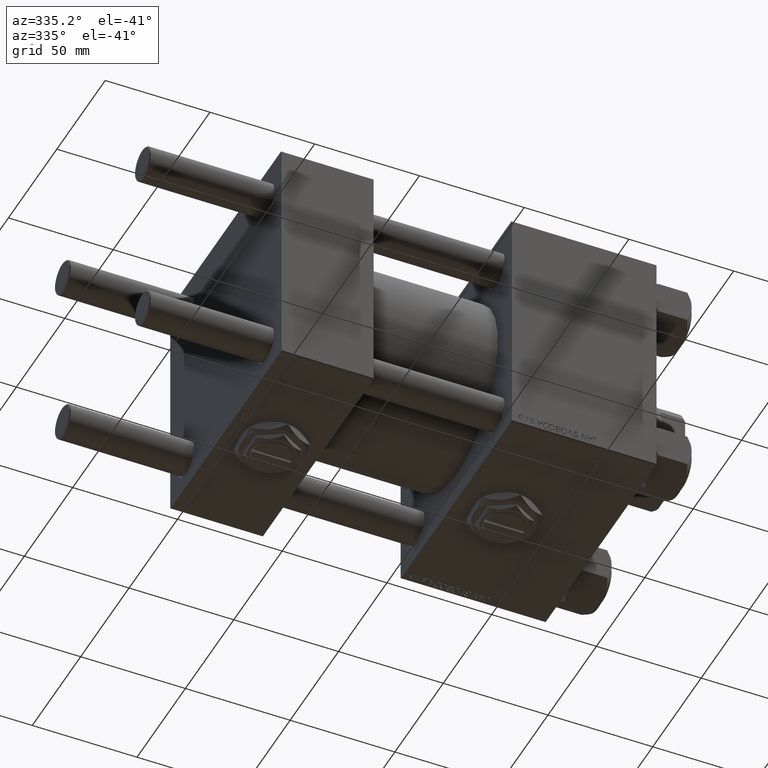
[diagram: clean part render]
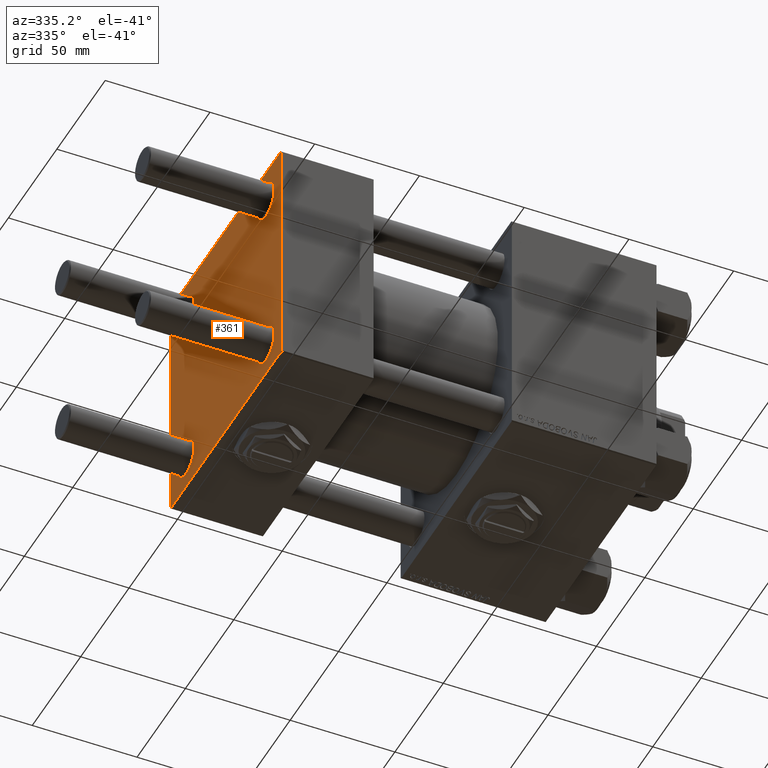
[diagram: same view with one face highlighted and labeled with its STEP entity id]
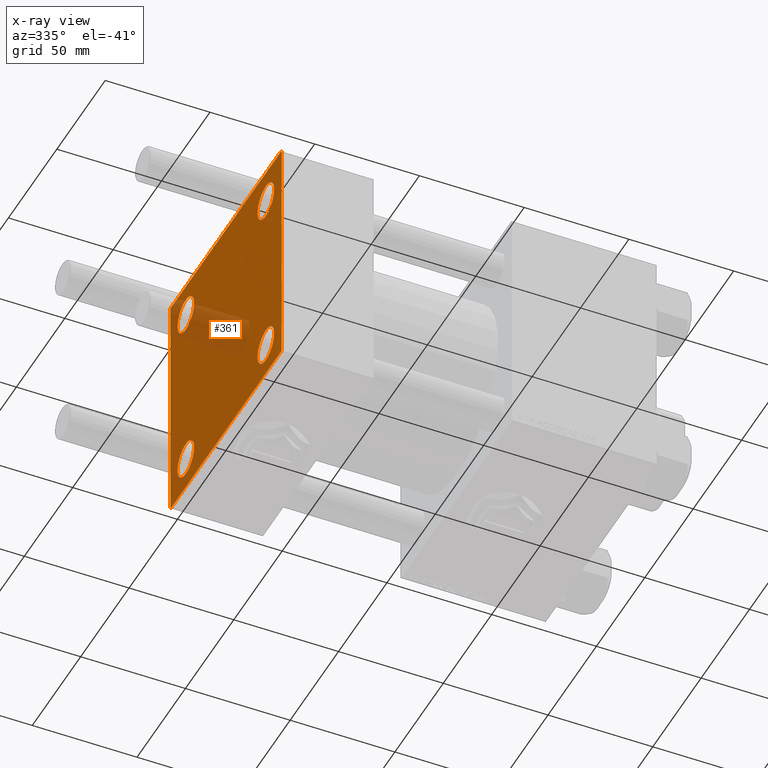
[diagram: x-ray of the same camera — body ghosted, the highlighted face saturated]
A machine part, auxiliary view. The second image highlights one B-rep face of the part: STEP entity #361.
The next image is the same camera in x-ray: the body ghosted, the highlighted face saturated — about 12% of this face is hidden behind the body in this view.
In plain terms, the highlighted planar face has unit normal (-1, 0, 0).
Its self-contained STEP definition (entity closure, byte-faithful):
#79 = DIRECTION ( 'NONE',  ( 0.000000000000000000, -1.000000000000000000, -1.206764157201257045E-16 ) ) ;
#252 = EDGE_LOOP ( 'NONE', ( #44641, #29699 ) ) ;
#361 = ADVANCED_FACE ( 'NONE', ( #3241, #11161, #2984, #34462, #50338 ), #19096, .T. ) ;
#513 = ORIENTED_EDGE ( 'NONE', *, *, #23494, .T. ) ;
#570 = DIRECTION ( 'NONE',  ( 0.000000000000000000, -0.7071067811865474617, 0.7071067811865474617 ) ) ;
#597 = ORIENTED_EDGE ( 'NONE', *, *, #21142, .T. ) ;
#1466 = CIRCLE ( 'NONE', #30998, 8.499999999999992895 ) ;
#2395 = DIRECTION ( 'NONE',  ( 0.000000000000000000, 0.000000000000000000, 1.000000000000000000 ) ) ;
#2607 = EDGE_CURVE ( 'NONE', #12701, #10030, #36299, .T. ) ;
#2654 = CARTESIAN_POINT ( 'NONE',  ( 0.000000000000000000, 41.34999999999999432, 41.35000000000000142 ) ) ;
#2984 = FACE_BOUND ( 'NONE', #252, .T. ) ;
#3071 = VERTEX_POINT ( 'NONE', #14245 ) ;
#3241 = FACE_BOUND ( 'NONE', #11183, .T. ) ;
#3258 = EDGE_CURVE ( 'NONE', #35482, #25384, #43866, .T. ) ;
#3775 = CARTESIAN_POINT ( 'NONE',  ( 0.000000000000000000, 41.34999999999999432, 32.85000000000000853 ) ) ;
#3923 = CARTESIAN_POINT ( 'NONE',  ( -0.000000000000000000, -57.25000000000081712, 57.24999999999922551 ) ) ;
#3937 = CARTESIAN_POINT ( 'NONE',  ( 0.000000000000000000, 57.24999999999922551, 57.25000000000081712 ) ) ;
#4875 = VERTEX_POINT ( 'NONE', #42690 ) ;
#5040 = ORIENTED_EDGE ( 'NONE', *, *, #3258, .T. ) ;
#5358 = VECTOR ( 'NONE', #12633, 1000.000000000000114 ) ;
#5807 = DIRECTION ( 'NONE',  ( 1.000000000000000000, -0.000000000000000000, 0.000000000000000000 ) ) ;
#6098 = DIRECTION ( 'NONE',  ( 0.000000000000000000, 0.000000000000000000, 1.000000000000000000 ) ) ;
#6408 = CARTESIAN_POINT ( 'NONE',  ( 0.000000000000000000, -57.50000000000000711, -57.00000000000000711 ) ) ;
#6707 = ORIENTED_EDGE ( 'NONE', *, *, #35612, .T. ) ;
#7218 = CARTESIAN_POINT ( 'NONE',  ( 0.000000000000000000, 57.49999999999999289, -57.49999999999999289 ) ) ;
#7549 = ORIENTED_EDGE ( 'NONE', *, *, #42366, .T. ) ;
#7615 = DIRECTION ( 'NONE',  ( 0.000000000000000000, 0.000000000000000000, 1.000000000000000000 ) ) ;
#7788 = DIRECTION ( 'NONE',  ( 0.000000000000000000, 0.000000000000000000, 1.000000000000000000 ) ) ;
#8379 = EDGE_CURVE ( 'NONE', #51293, #30797, #9827, .T. ) ;
#8570 = DIRECTION ( 'NONE',  ( 1.000000000000000000, -0.000000000000000000, 0.000000000000000000 ) ) ;
#8907 = EDGE_CURVE ( 'NONE', #39832, #11356, #51658, .T. ) ;
#9827 = LINE ( 'NONE', #16727, #24611 ) ;
#10030 = VERTEX_POINT ( 'NONE', #26660 ) ;
#10170 = CARTESIAN_POINT ( 'NONE',  ( 0.000000000000000000, -41.34999999999998721, -49.85000000000000853 ) ) ;
#11161 = FACE_BOUND ( 'NONE', #22301, .T. ) ;
#11183 = EDGE_LOOP ( 'NONE', ( #5040, #7549 ) ) ;
#11229 = ORIENTED_EDGE ( 'NONE', *, *, #40539, .F. ) ;
#11356 = VERTEX_POINT ( 'NONE', #38131 ) ;
#11774 = EDGE_CURVE ( 'NONE', #14667, #4875, #48537, .T. ) ;
#12633 = DIRECTION ( 'NONE',  ( -0.000000000000000000, 0.7071067811865376918, 0.7071067811865573427 ) ) ;
#12701 = VERTEX_POINT ( 'NONE', #35401 ) ;
#12727 = CARTESIAN_POINT ( 'NONE',  ( 0.000000000000000000, -57.25000000000000711, -57.25000000000000711 ) ) ;
#12937 = ORIENTED_EDGE ( 'NONE', *, *, #15152, .T. ) ;
#13579 = EDGE_CURVE ( 'NONE', #10030, #33337, #40739, .T. ) ;
#13706 = CARTESIAN_POINT ( 'NONE',  ( 0.000000000000000000, 57.00000000000000711, 57.50000000000000711 ) ) ;
#13773 = CARTESIAN_POINT ( 'NONE',  ( 0.000000000000000000, -41.34999999999998721, 49.85000000000000853 ) ) ;
#14245 = CARTESIAN_POINT ( 'NONE',  ( 0.000000000000000000, 41.34999999999999432, 49.85000000000000142 ) ) ;
#14402 = EDGE_CURVE ( 'NONE', #3071, #41689, #47517, .T. ) ;
#14667 = VERTEX_POINT ( 'NONE', #13706 ) ;
#15152 = EDGE_CURVE ( 'NONE', #41689, #3071, #18014, .T. ) ;
#16006 = CARTESIAN_POINT ( 'NONE',  ( 0.000000000000000000, -57.50000000000000711, 57.00000000000000711 ) ) ;
#16337 = LINE ( 'NONE', #3923, #5358 ) ;
#16727 = CARTESIAN_POINT ( 'NONE',  ( 0.000000000000000000, 57.49999999999999289, 57.50000000000000711 ) ) ;
#17061 = AXIS2_PLACEMENT_3D ( 'NONE', #43008, #46023, #18700 ) ;
#17969 = VECTOR ( 'NONE', #24204, 1000.000000000000000 ) ;
#18014 = CIRCLE ( 'NONE', #28164, 8.499999999999992895 ) ;
#18278 = DIRECTION ( 'NONE',  ( 0.000000000000000000, 0.000000000000000000, 1.000000000000000000 ) ) ;
#18525 = CARTESIAN_POINT ( 'NONE',  ( 0.000000000000000000, -41.34999999999998721, -41.35000000000000853 ) ) ;
#18700 = DIRECTION ( 'NONE',  ( 0.000000000000000000, 0.000000000000000000, 1.000000000000000000 ) ) ;
#19096 = PLANE ( 'NONE',  #31099 ) ;
#20266 = ORIENTED_EDGE ( 'NONE', *, *, #8379, .T. ) ;
#21142 = EDGE_CURVE ( 'NONE', #30797, #12701, #36906, .T. ) ;
#21275 = DIRECTION ( 'NONE',  ( 0.000000000000000000, 0.000000000000000000, 1.000000000000000000 ) ) ;
#21927 = CARTESIAN_POINT ( 'NONE',  ( 0.000000000000000000, -41.34999999999998721, 32.85000000000001563 ) ) ;
#22143 = CARTESIAN_POINT ( 'NONE',  ( 0.000000000000000000, 41.34999999999999432, -32.85000000000000853 ) ) ;
#22148 = ORIENTED_EDGE ( 'NONE', *, *, #29496, .T. ) ;
#22301 = EDGE_LOOP ( 'NONE', ( #42303, #6707 ) ) ;
#22580 = VECTOR ( 'NONE', #23571, 1000.000000000000000 ) ;
#23494 = EDGE_CURVE ( 'NONE', #30773, #4875, #16337, .T. ) ;
#23571 = DIRECTION ( 'NONE',  ( 0.000000000000000000, 0.000000000000000000, -1.000000000000000000 ) ) ;
#24204 = DIRECTION ( 'NONE',  ( 0.000000000000000000, -1.000000000000000000, -1.206764157201257045E-16 ) ) ;
#24272 = LINE ( 'NONE', #3937, #38348 ) ;
#24473 = ORIENTED_EDGE ( 'NONE', *, *, #14402, .T. ) ;
#24611 = VECTOR ( 'NONE', #29403, 1000.000000000000000 ) ;
#24725 = CARTESIAN_POINT ( 'NONE',  ( 0.000000000000000000, 57.25000000000081712, -57.24999999999922551 ) ) ;
#24955 = CARTESIAN_POINT ( 'NONE',  ( 0.000000000000000000, 41.34999999999999432, 41.35000000000000142 ) ) ;
#25384 = VERTEX_POINT ( 'NONE', #21927 ) ;
#26133 = VECTOR ( 'NONE', #79, 1000.000000000000000 ) ;
#26654 = VECTOR ( 'NONE', #52229, 1000.000000000000114 ) ;
#26660 = CARTESIAN_POINT ( 'NONE',  ( 0.000000000000000000, -57.00000000000000711, -57.50000000000000711 ) ) ;
#27122 = DIRECTION ( 'NONE',  ( 0.000000000000000000, 0.000000000000000000, 1.000000000000000000 ) ) ;
#27243 = AXIS2_PLACEMENT_3D ( 'NONE', #2654, #30664, #2395 ) ;
#27752 = EDGE_LOOP ( 'NONE', ( #20266, #597, #45998, #38474, #11229, #513, #34222, #22148 ) ) ;
#28164 = AXIS2_PLACEMENT_3D ( 'NONE', #24955, #8570, #7788 ) ;
#28713 = EDGE_LOOP ( 'NONE', ( #24473, #12937 ) ) ;
#28912 = VECTOR ( 'NONE', #570, 1000.000000000000114 ) ;
#29403 = DIRECTION ( 'NONE',  ( 0.000000000000000000, 0.000000000000000000, -1.000000000000000000 ) ) ;
#29496 = EDGE_CURVE ( 'NONE', #14667, #51293, #24272, .T. ) ;
#29605 = AXIS2_PLACEMENT_3D ( 'NONE', #49577, #41625, #21275 ) ;
#29699 = ORIENTED_EDGE ( 'NONE', *, *, #48466, .T. ) ;
#30128 = CARTESIAN_POINT ( 'NONE',  ( 0.000000000000000000, -41.34999999999998721, 41.35000000000000853 ) ) ;
#30664 = DIRECTION ( 'NONE',  ( 1.000000000000000000, -0.000000000000000000, 0.000000000000000000 ) ) ;
#30680 = DIRECTION ( 'NONE',  ( 1.000000000000000000, -0.000000000000000000, 0.000000000000000000 ) ) ;
#30773 = VERTEX_POINT ( 'NONE', #16006 ) ;
#30797 = VERTEX_POINT ( 'NONE', #44549 ) ;
#30998 = AXIS2_PLACEMENT_3D ( 'NONE', #18525, #30680, #18278 ) ;
#31099 = AXIS2_PLACEMENT_3D ( 'NONE', #35229, #51346, #42381 ) ;
#31144 = DIRECTION ( 'NONE',  ( 1.000000000000000000, -0.000000000000000000, 0.000000000000000000 ) ) ;
#31953 = DIRECTION ( 'NONE',  ( 0.000000000000000000, 0.7071067811865573427, -0.7071067811865376918 ) ) ;
#33337 = VERTEX_POINT ( 'NONE', #6408 ) ;
#34136 = VERTEX_POINT ( 'NONE', #10170 ) ;
#34222 = ORIENTED_EDGE ( 'NONE', *, *, #11774, .F. ) ;
#34462 = FACE_BOUND ( 'NONE', #28713, .T. ) ;
#34642 = DIRECTION ( 'NONE',  ( 1.000000000000000000, -0.000000000000000000, 0.000000000000000000 ) ) ;
#35195 = CIRCLE ( 'NONE', #45315, 8.499999999999992895 ) ;
#35216 = LINE ( 'NONE', #47118, #22580 ) ;
#35229 = CARTESIAN_POINT ( 'NONE',  ( 0.000000000000000000, 0.000000000000000000, 0.000000000000000000 ) ) ;
#35401 = CARTESIAN_POINT ( 'NONE',  ( 0.000000000000000000, 57.00000000000002132, -57.49999999999999289 ) ) ;
#35482 = VERTEX_POINT ( 'NONE', #13773 ) ;
#35612 = EDGE_CURVE ( 'NONE', #34136, #37703, #35195, .T. ) ;
#36299 = LINE ( 'NONE', #7218, #26133 ) ;
#36413 = EDGE_CURVE ( 'NONE', #37703, #34136, #1466, .T. ) ;
#36906 = LINE ( 'NONE', #24725, #26654 ) ;
#37703 = VERTEX_POINT ( 'NONE', #41473 ) ;
#38131 = CARTESIAN_POINT ( 'NONE',  ( 0.000000000000000000, 41.34999999999999432, -49.85000000000000142 ) ) ;
#38348 = VECTOR ( 'NONE', #31953, 1000.000000000000114 ) ;
#38474 = ORIENTED_EDGE ( 'NONE', *, *, #13579, .T. ) ;
#38890 = CIRCLE ( 'NONE', #29605, 8.499999999999992895 ) ;
#39832 = VERTEX_POINT ( 'NONE', #22143 ) ;
#40366 = AXIS2_PLACEMENT_3D ( 'NONE', #30128, #5807, #27122 ) ;
#40539 = EDGE_CURVE ( 'NONE', #30773, #33337, #35216, .T. ) ;
#40739 = LINE ( 'NONE', #12727, #28912 ) ;
#41473 = CARTESIAN_POINT ( 'NONE',  ( 0.000000000000000000, -41.34999999999998721, -32.85000000000001563 ) ) ;
#41625 = DIRECTION ( 'NONE',  ( 1.000000000000000000, -0.000000000000000000, 0.000000000000000000 ) ) ;
#41689 = VERTEX_POINT ( 'NONE', #3775 ) ;
#42303 = ORIENTED_EDGE ( 'NONE', *, *, #36413, .T. ) ;
#42366 = EDGE_CURVE ( 'NONE', #25384, #35482, #47950, .T. ) ;
#42381 = DIRECTION ( 'NONE',  ( -0.000000000000000000, 0.000000000000000000, 1.000000000000000000 ) ) ;
#42690 = CARTESIAN_POINT ( 'NONE',  ( 0.000000000000000000, -57.00000000000003553, 57.49999999999999289 ) ) ;
#43008 = CARTESIAN_POINT ( 'NONE',  ( 0.000000000000000000, 41.34999999999999432, -41.35000000000000142 ) ) ;
#43831 = CARTESIAN_POINT ( 'NONE',  ( 0.000000000000000000, -41.34999999999998721, 41.35000000000000853 ) ) ;
#43866 = CIRCLE ( 'NONE', #52282, 8.499999999999992895 ) ;
#44549 = CARTESIAN_POINT ( 'NONE',  ( 0.000000000000000000, 57.49999999999999289, -57.00000000000000711 ) ) ;
#44641 = ORIENTED_EDGE ( 'NONE', *, *, #8907, .T. ) ;
#45315 = AXIS2_PLACEMENT_3D ( 'NONE', #50763, #34642, #6098 ) ;
#45998 = ORIENTED_EDGE ( 'NONE', *, *, #2607, .T. ) ;
#46023 = DIRECTION ( 'NONE',  ( 1.000000000000000000, -0.000000000000000000, 0.000000000000000000 ) ) ;
#46105 = CARTESIAN_POINT ( 'NONE',  ( 0.000000000000000000, 57.49999999999999289, 57.00000000000003553 ) ) ;
#47118 = CARTESIAN_POINT ( 'NONE',  ( 0.000000000000000000, -57.50000000000000711, 57.49999999999999289 ) ) ;
#47479 = CARTESIAN_POINT ( 'NONE',  ( 0.000000000000000000, 57.49999999999999289, 57.50000000000000711 ) ) ;
#47517 = CIRCLE ( 'NONE', #27243, 8.499999999999992895 ) ;
#47950 = CIRCLE ( 'NONE', #40366, 8.499999999999992895 ) ;
#48466 = EDGE_CURVE ( 'NONE', #11356, #39832, #38890, .T. ) ;
#48537 = LINE ( 'NONE', #47479, #17969 ) ;
#49577 = CARTESIAN_POINT ( 'NONE',  ( 0.000000000000000000, 41.34999999999999432, -41.35000000000000142 ) ) ;
#50338 = FACE_OUTER_BOUND ( 'NONE', #27752, .T. ) ;
#50763 = CARTESIAN_POINT ( 'NONE',  ( 0.000000000000000000, -41.34999999999998721, -41.35000000000000853 ) ) ;
#51293 = VERTEX_POINT ( 'NONE', #46105 ) ;
#51346 = DIRECTION ( 'NONE',  ( -1.000000000000000000, 0.000000000000000000, -0.000000000000000000 ) ) ;
#51658 = CIRCLE ( 'NONE', #17061, 8.499999999999992895 ) ;
#52229 = DIRECTION ( 'NONE',  ( -0.000000000000000000, -0.7071067811865376918, -0.7071067811865573427 ) ) ;
#52282 = AXIS2_PLACEMENT_3D ( 'NONE', #43831, #31144, #7615 ) ;